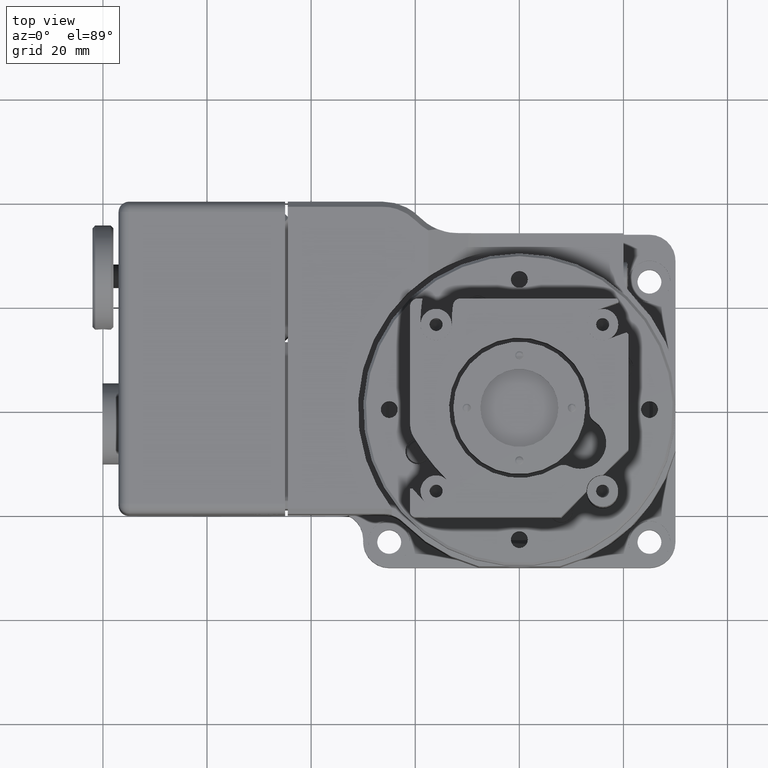
[diagram: clean part render]
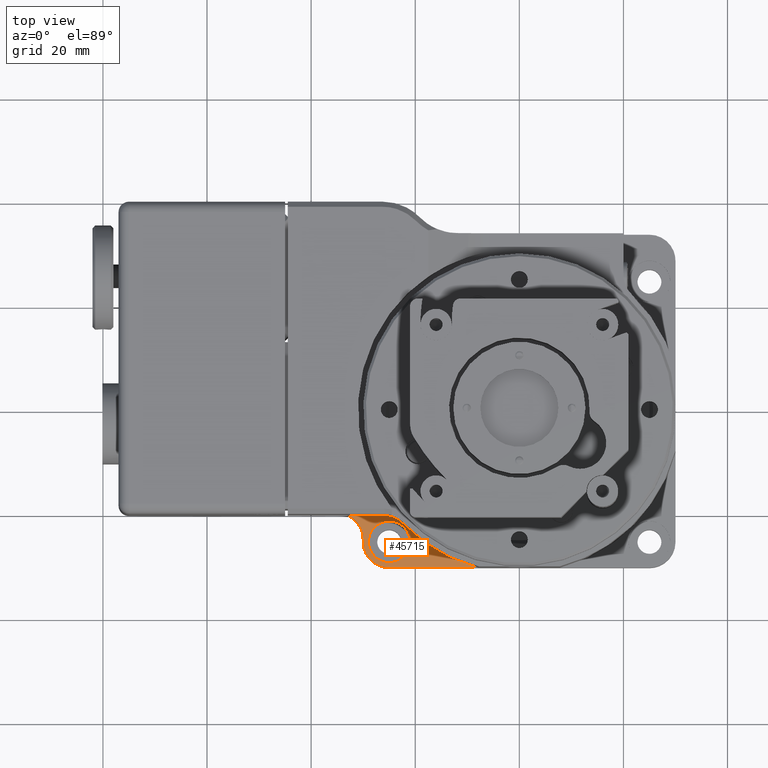
[diagram: same view with one face highlighted and labeled with its STEP entity id]
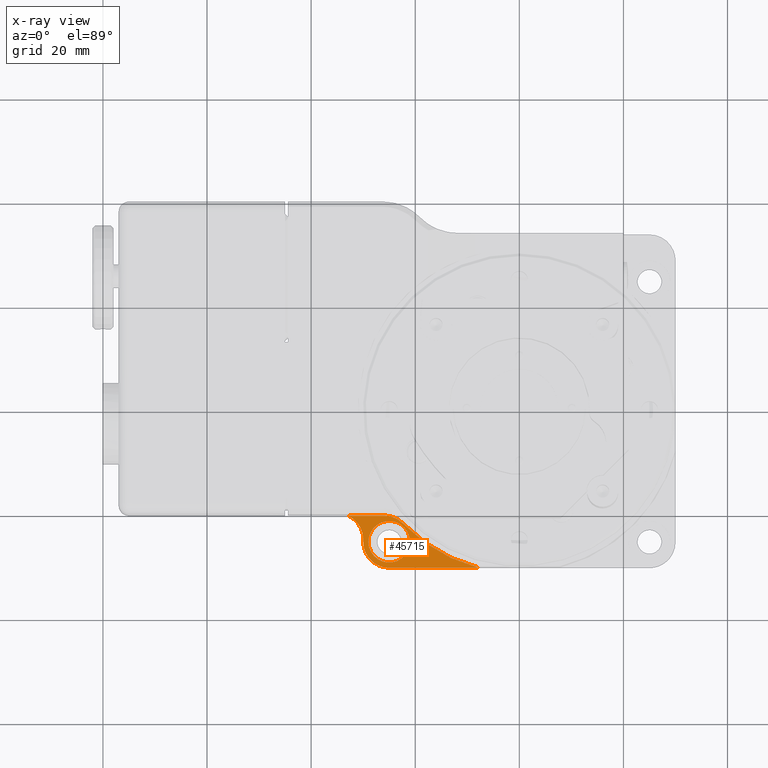
[diagram: x-ray of the same camera — body ghosted, the highlighted face saturated]
A machine part, top view. The second image highlights one B-rep face of the part: STEP entity #45715.
The next image is the same camera in x-ray: the body ghosted, the highlighted face saturated — about 0% of this face is hidden behind the body in this view.
In plain terms, the highlighted planar face has unit normal (0, 0, 1).
Its self-contained STEP definition (entity closure, byte-faithful):
#95 = CARTESIAN_POINT ( 'NONE',  ( -1.181102362204724310, -0.9842519685039370358, 0.2362204724409449064 ) ) ;
#316 = CARTESIAN_POINT ( 'NONE',  ( -1.005120720590176875, -0.8267745229967294884, 0.2362204724409449064 ) ) ;
#339 = CARTESIAN_POINT ( 'NONE',  ( -1.201344411730649986, -0.8756753625393594032, 0.2362204724409448509 ) ) ;
#679 = CARTESIAN_POINT ( 'NONE',  ( -0.8387591287383803218, -0.9239868610448674913, 0.2362204724409449064 ) ) ;
#779 = ORIENTED_EDGE ( 'NONE', *, *, #62675, .T. ) ;
#1044 = CARTESIAN_POINT ( 'NONE',  ( -1.141732283464567121, -0.9842519685039370358, 0.2362204724409449064 ) ) ;
#1087 = CARTESIAN_POINT ( 'NONE',  ( -1.181102362204724532, -1.010088146745020898, 0.2362204724409448509 ) ) ;
#2015 = EDGE_CURVE ( 'NONE', #19621, #7167, #15440, .T. ) ;
#3485 = EDGE_CURVE ( 'NONE', #70395, #47482, #8767, .T. ) ;
#3813 = CARTESIAN_POINT ( 'NONE',  ( -0.5676272143555766148, -1.081882468068282588, 0.2362204724409449341 ) ) ;
#4158 = EDGE_CURVE ( 'NONE', #41418, #60409, #49344, .T. ) ;
#4309 = DIRECTION ( 'NONE',  ( 0.000000000000000000, 0.000000000000000000, 1.000000000000000000 ) ) ;
#5360 = CARTESIAN_POINT ( 'NONE',  ( -1.044517075963006469, -1.129744808269493861, 0.2362204724409449064 ) ) ;
#5727 = CARTESIAN_POINT ( 'NONE',  ( -1.137736458399542849, -1.025231026773503862, 0.2362204724409449064 ) ) ;
#5844 = CARTESIAN_POINT ( 'NONE',  ( -1.141732283464567121, -0.9842519685039370358, 0.2362204724409449064 ) ) ;
#6810 = CARTESIAN_POINT ( 'NONE',  ( -0.9633832164176973079, -0.8267687840898848561, 0.2362204724409449064 ) ) ;
#6842 = ORIENTED_EDGE ( 'NONE', *, *, #3485, .T. ) ;
#7167 = VERTEX_POINT ( 'NONE', #24224 ) ;
#7263 = EDGE_CURVE ( 'NONE', #37732, #37732, #64220, .T. ) ;
#7933 = CARTESIAN_POINT ( 'NONE',  ( -0.8965366823102519644, -0.8285367831996039989, 0.2362204724409448509 ) ) ;
#8767 = B_SPLINE_CURVE_WITH_KNOTS ( 'NONE', 3,
 ( #55742, #16256, #43811, #10798, #22393, #339, #11874, #11153, #66925, #66207 ),
 .UNSPECIFIED., .F., .F.,
 ( 4, 2, 2, 2, 4 ),
 ( 0.000000000000000000, 0.2500000000000000000, 0.5000000000000000000, 0.7500000000000000000, 1.000000000000000000 ),
 .UNSPECIFIED. ) ;
#10387 = CARTESIAN_POINT ( 'NONE',  ( -1.019829436770755882, -0.7874015748031496509, 0.2362204724409449064 ) ) ;
#10775 = CARTESIAN_POINT ( 'NONE',  ( -1.121761333621246859, -0.9047055500311032006, 0.2362204724409449064 ) ) ;
#10798 = CARTESIAN_POINT ( 'NONE',  ( -1.232780298192905022, -0.8303388569377188055, 0.2362204724409449341 ) ) ;
#10943 = CARTESIAN_POINT ( 'NONE',  ( -0.9842519685039370358, -1.181102362204724310, 0.2362204724409449064 ) ) ;
#11127 = CARTESIAN_POINT ( 'NONE',  ( -1.063798386976755328, -1.121761333621262402, 0.2362204724409449064 ) ) ;
#11153 = CARTESIAN_POINT ( 'NONE',  ( -1.183656734863955728, -0.9279398007712792440, 0.2362204724409449341 ) ) ;
#11497 = CARTESIAN_POINT ( 'NONE',  ( -0.8307756540901329867, -1.025235764949241846, 0.2362204724409449064 ) ) ;
#11604 = EDGE_LOOP ( 'NONE', ( #17539 ) ) ;
#11851 = CARTESIAN_POINT ( 'NONE',  ( -0.9633832164177196233, -1.141729414011144694, 0.2362204724409449064 ) ) ;
#11874 = CARTESIAN_POINT ( 'NONE',  ( -1.193874225500880071, -0.8924144232880264482, 0.2362204724409449341 ) ) ;
#13349 = EDGE_CURVE ( 'NONE', #47482, #19621, #36727, .T. ) ;
#13350 = CARTESIAN_POINT ( 'NONE',  ( -0.9185790216771224648, -0.8133871758025378318, 0.2362204724409449341 ) ) ;
#13712 = CARTESIAN_POINT ( 'NONE',  ( -0.9933759514816618008, -0.7874015748031496509, 0.2362204724409449341 ) ) ;
#15266 = CARTESIAN_POINT ( 'NONE',  ( -0.3074901447207358252, -1.181102362204724310, 0.2362204724409449064 ) ) ;
#15440 = B_SPLINE_CURVE_WITH_KNOTS ( 'NONE', 3,
 ( #15653, #1087, #44915, #61181, #34018, #29277, #23122, #28199, #39815, #54417 ),
 .UNSPECIFIED., .F., .F.,
 ( 4, 2, 2, 2, 4 ),
 ( 0.000000000000000000, 0.2500000000000000000, 0.5000000000000000000, 0.7500000000000000000, 1.000000000000000000 ),
 .UNSPECIFIED. ) ;
#15653 = CARTESIAN_POINT ( 'NONE',  ( -1.181102362204724310, -0.9842519685039370358, 0.2362204724409449064 ) ) ;
#16233 = CARTESIAN_POINT ( 'NONE',  ( -0.8467426033866275459, -1.063798386976770871, 0.2362204724409449064 ) ) ;
#16256 = CARTESIAN_POINT ( 'NONE',  ( -1.275513438227352969, -0.7954578954223565646, 0.2362204724409448509 ) ) ;
#16369 = CARTESIAN_POINT ( 'NONE',  ( -1.181102362204724310, -0.9776902887139107268, 0.2362204724409449064 ) ) ;
#16438 = CARTESIAN_POINT ( 'NONE',  ( -1.019829436770755882, -0.7874015748031496509, 0.2362204724409449064 ) ) ;
#16589 = CARTESIAN_POINT ( 'NONE',  ( -1.129744808269494083, -1.044517075963006469, 0.2362204724409449064 ) ) ;
#16937 = CARTESIAN_POINT ( 'NONE',  ( -0.9842519685039370358, -0.8267716535433071723, 0.2362204724409449064 ) ) ;
#17539 = ORIENTED_EDGE ( 'NONE', *, *, #7263, .T. ) ;
#17662 = CARTESIAN_POINT ( 'NONE',  ( -0.8581381047669203177, -0.8876509769968741193, 0.2362204724409449064 ) ) ;
#19621 = VERTEX_POINT ( 'NONE', #58971 ) ;
#21115 = ORIENTED_EDGE ( 'NONE', *, *, #4158, .T. ) ;
#21632 = CARTESIAN_POINT ( 'NONE',  ( -1.201374917984732393, -0.7874015748031496509, 0.2362204724409449064 ) ) ;
#21659 = CARTESIAN_POINT ( 'NONE',  ( -0.8728965698918822458, -1.095607367115991826, 0.2362204724409449064 ) ) ;
#22393 = CARTESIAN_POINT ( 'NONE',  ( -1.220971997476859361, -0.8443685136039105199, 0.2362204724409449341 ) ) ;
#22728 = CARTESIAN_POINT ( 'NONE',  ( -0.8387591287383803218, -1.044517075963006469, 0.2362204724409449064 ) ) ;
#23081 = CARTESIAN_POINT ( 'NONE',  ( -1.137728282917741307, -0.9432681720586324481, 0.2362204724409449064 ) ) ;
#23122 = CARTESIAN_POINT ( 'NONE',  ( -1.083438581819484048, -1.156233784393602360, 0.2362204724409449341 ) ) ;
#24215 = CARTESIAN_POINT ( 'NONE',  ( -0.9671948203741187466, -0.7927361504052294894, 0.2362204724409449341 ) ) ;
#24224 = CARTESIAN_POINT ( 'NONE',  ( -0.9842519685039370358, -1.181102362204724310, 0.2362204724409449064 ) ) ;
#25432 = ORIENTED_EDGE ( 'NONE', *, *, #13349, .T. ) ;
#25859 = CARTESIAN_POINT ( 'NONE',  ( -0.6640732296302217508, -1.025515437574841426, 0.2362204724409448509 ) ) ;
#26157 = CARTESIAN_POINT ( 'NONE',  ( -0.5330774193151365248, -1.181102362204724532, 0.2362204724409449064 ) ) ;
#26374 = CARTESIAN_POINT ( 'NONE',  ( -1.292147658591720427, -0.7874015748031496509, 0.2362204724409449064 ) ) ;
#26911 = B_SPLINE_CURVE_WITH_KNOTS ( 'NONE', 3,
 ( #62988, #7933, #13350, #24215, #13712, #51790 ),
 .UNSPECIFIED., .F., .F.,
 ( 4, 2, 4 ),
 ( 0.000000000000000000, 0.5000000000000000000, 1.000000000000000000 ),
 .UNSPECIFIED. ) ;
#27428 = CARTESIAN_POINT ( 'NONE',  ( -1.080848901991032784, -1.110361774220981035, 0.2362204724409449064 ) ) ;
#28158 = CARTESIAN_POINT ( 'NONE',  ( -1.121753158139445317, -1.063803125152508855, 0.2362204724409449064 ) ) ;
#28199 = CARTESIAN_POINT ( 'NONE',  ( -1.035728123836063608, -1.176002252028163886, 0.2362204724409449341 ) ) ;
#28516 = CARTESIAN_POINT ( 'NONE',  ( -1.129744808269494083, -0.9239868610448678243, 0.2362204724409449064 ) ) ;
#28879 = CARTESIAN_POINT ( 'NONE',  ( -0.8267716535433070613, -0.9842519685039370358, 0.2362204724409449064 ) ) ;
#29277 = CARTESIAN_POINT ( 'NONE',  ( -1.105189391483670125, -1.141707058997788016, 0.2362204724409448509 ) ) ;
#30222 = EDGE_LOOP ( 'NONE', ( #62510, #21115, #779, #69680, #6842, #25432, #71297 ) ) ;
#30604 = CARTESIAN_POINT ( 'NONE',  ( -0.3074901447207358252, -1.181102362204724310, 0.2362204724409449064 ) ) ;
#32529 = DIRECTION ( 'NONE',  ( 1.000000000000000000, 0.000000000000000000, 0.000000000000000000 ) ) ;
#33249 = FACE_BOUND ( 'NONE', #11604, .T. ) ;
#33253 = CARTESIAN_POINT ( 'NONE',  ( -0.8728965698918822458, -0.8728965698918823568, 0.2362204724409449064 ) ) ;
#33610 = CARTESIAN_POINT ( 'NONE',  ( -1.025237961133799169, -0.8307703520315700141, 0.2362204724409449064 ) ) ;
#34018 = CARTESIAN_POINT ( 'NONE',  ( -1.141703042054341477, -1.105185374540223364, 0.2362204724409449341 ) ) ;
#36052 = CARTESIAN_POINT ( 'NONE',  ( -0.7101721408900997234, -0.9941462012416720784, 0.2362204724409449341 ) ) ;
#36727 = B_SPLINE_CURVE_WITH_KNOTS ( 'NONE', 3,
 ( #43931, #59877, #16369, #95 ),
 .UNSPECIFIED., .F., .F.,
 ( 4, 4 ),
 ( 0.000000000000000000, 1.000000000000000000 ),
 .UNSPECIFIED. ) ;
#37424 = CARTESIAN_POINT ( 'NONE',  ( -0.3074901447207358252, -1.181102362204724310, 0.2362204724409449064 ) ) ;
#37732 = VERTEX_POINT ( 'NONE', #5844 ) ;
#38336 = CARTESIAN_POINT ( 'NONE',  ( -1.063796190792213547, -0.8467479054451905185, 0.2362204724409449064 ) ) ;
#38696 = CARTESIAN_POINT ( 'NONE',  ( -0.8307703520315697920, -0.9432659758740089551, 0.2362204724409449064 ) ) ;
#39039 = CARTESIAN_POINT ( 'NONE',  ( -0.8876550350168440628, -0.8581421627868904833, 0.2362204724409449064 ) ) ;
#39399 = CARTESIAN_POINT ( 'NONE',  ( -1.141732283464567121, -0.9842519685039370358, 0.2362204724409449064 ) ) ;
#39769 = CARTESIAN_POINT ( 'NONE',  ( -0.9432659758740749023, -1.137733584976304169, 0.2362204724409449064 ) ) ;
#39815 = CARTESIAN_POINT ( 'NONE',  ( -1.010117298213887738, -1.181102362204724754, 0.2362204724409449341 ) ) ;
#41418 = VERTEX_POINT ( 'NONE', #15266 ) ;
#42623 = B_SPLINE_CURVE_WITH_KNOTS ( 'NONE', 3,
 ( #10387, #48840, #21632, #60764 ),
 .UNSPECIFIED., .F., .F.,
 ( 4, 4 ),
 ( 0.000000000000000000, 1.000000000000000000 ),
 .UNSPECIFIED. ) ;
#43317 = EDGE_CURVE ( 'NONE', #7167, #41418, #65357, .T. ) ;
#43428 = CARTESIAN_POINT ( 'NONE',  ( -1.029729324328870099, -0.9842519685039370358, 0.2362204724409449064 ) ) ;
#43786 = CARTESIAN_POINT ( 'NONE',  ( -0.8876509769969206376, -1.110365832241000605, 0.2362204724409449064 ) ) ;
#43811 = CARTESIAN_POINT ( 'NONE',  ( -1.260293899574404408, -0.8056738482914050925, 0.2362204724409449341 ) ) ;
#43931 = CARTESIAN_POINT ( 'NONE',  ( -1.181102362204724310, -0.9645669291338583307, 0.2362204724409449064 ) ) ;
#44145 = CARTESIAN_POINT ( 'NONE',  ( -1.095607367115992048, -0.8728965698918823568, 0.2362204724409449064 ) ) ;
#44869 = CARTESIAN_POINT ( 'NONE',  ( -1.005120720590154670, -1.141735152917989327, 0.2362204724409449064 ) ) ;
#44915 = CARTESIAN_POINT ( 'NONE',  ( -1.175997003638609817, -1.035725949881992403, 0.2362204724409449341 ) ) ;
#45229 = CARTESIAN_POINT ( 'NONE',  ( -1.044517075963006469, -0.8387591287383803218, 0.2362204724409449064 ) ) ;
#45715 = ADVANCED_FACE ( 'NONE', ( #33249, #53937 ), #59722, .T. ) ;
#47482 = VERTEX_POINT ( 'NONE', #57907 ) ;
#47667 = CARTESIAN_POINT ( 'NONE',  ( -0.5176669719051145702, -1.106659872415545642, 0.2362204724409449341 ) ) ;
#48024 = VERTEX_POINT ( 'NONE', #16438 ) ;
#48840 = CARTESIAN_POINT ( 'NONE',  ( -1.110602177377744137, -0.7874015748031496509, 0.2362204724409449064 ) ) ;
#49344 = B_SPLINE_CURVE_WITH_KNOTS ( 'NONE', 3,
 ( #30604, #53437, #63914, #47667, #3813, #25859, #36052, #69339, #69701, #70061 ),
 .UNSPECIFIED., .F., .F.,
 ( 4, 2, 2, 2, 4 ),
 ( 0.000000000000000000, 0.2499999999999998335, 0.4999999999999996669, 0.7499999999999997780, 1.000000000000000000 ),
 .UNSPECIFIED. ) ;
#49585 = CARTESIAN_POINT ( 'NONE',  ( -1.141732283464567121, -0.9633762862492792900, 0.2362204724409449064 ) ) ;
#49935 = CARTESIAN_POINT ( 'NONE',  ( -1.141732283464567121, -1.005142657620480717, 0.2362204724409449064 ) ) ;
#50300 = CARTESIAN_POINT ( 'NONE',  ( -0.9432681720586324481, -0.8307756540901329867, 0.2362204724409449064 ) ) ;
#50655 = CARTESIAN_POINT ( 'NONE',  ( -0.9239868610448678243, -0.8387591287383803218, 0.2362204724409449064 ) ) ;
#51790 = CARTESIAN_POINT ( 'NONE',  ( -1.019829436770755882, -0.7874015748031496509, 0.2362204724409449064 ) ) ;
#53437 = CARTESIAN_POINT ( 'NONE',  ( -0.3615502175172597976, -1.167028273336773170, 0.2362204724409449341 ) ) ;
#53937 = FACE_OUTER_BOUND ( 'NONE', #30222, .T. ) ;
#54417 = CARTESIAN_POINT ( 'NONE',  ( -0.9842519685039370358, -1.181102362204724310, 0.2362204724409449064 ) ) ;
#54999 = CARTESIAN_POINT ( 'NONE',  ( -0.8467479054451907405, -0.9047077462157261385, 0.2362204724409449064 ) ) ;
#55166 = CARTESIAN_POINT ( 'NONE',  ( -0.7586646939095368358, -1.181102362204724532, 0.2362204724409449064 ) ) ;
#55366 = CARTESIAN_POINT ( 'NONE',  ( -0.8267745229967291554, -0.9633832164176973079, 0.2362204724409449064 ) ) ;
#55719 = CARTESIAN_POINT ( 'NONE',  ( -0.9239868610448678243, -1.129744808269493861, 0.2362204724409449064 ) ) ;
#55742 = CARTESIAN_POINT ( 'NONE',  ( -1.292147658591720427, -0.7874015748031496509, 0.2362204724409449064 ) ) ;
#56444 = CARTESIAN_POINT ( 'NONE',  ( -0.8581421627868438540, -1.080848901990983046, 0.2362204724409449064 ) ) ;
#57907 = CARTESIAN_POINT ( 'NONE',  ( -1.181102362204724310, -0.9645669291338583307, 0.2362204724409449064 ) ) ;
#58971 = CARTESIAN_POINT ( 'NONE',  ( -1.181102362204724310, -0.9842519685039370358, 0.2362204724409449064 ) ) ;
#59722 = PLANE ( 'NONE',  #65508 ) ;
#59877 = CARTESIAN_POINT ( 'NONE',  ( -1.181102362204724310, -0.9711286089238845287, 0.2362204724409449064 ) ) ;
#60409 = VERTEX_POINT ( 'NONE', #70950 ) ;
#60433 = CARTESIAN_POINT ( 'NONE',  ( -1.025235764949257389, -1.137728282917725320, 0.2362204724409449064 ) ) ;
#60764 = CARTESIAN_POINT ( 'NONE',  ( -1.292147658591720427, -0.7874015748031496509, 0.2362204724409449064 ) ) ;
#60788 = CARTESIAN_POINT ( 'NONE',  ( -1.080852960010953545, -0.8581381047668735773, 0.2362204724409449064 ) ) ;
#61142 = CARTESIAN_POINT ( 'NONE',  ( -0.8267687840898848561, -1.005120720590176875, 0.2362204724409449064 ) ) ;
#61181 = CARTESIAN_POINT ( 'NONE',  ( -1.156239032783156651, -1.083440755773554587, 0.2362204724409449341 ) ) ;
#61859 = CARTESIAN_POINT ( 'NONE',  ( -0.9842519685039370358, -1.141732283464567121, 0.2362204724409449064 ) ) ;
#61901 = EDGE_CURVE ( 'NONE', #48024, #70395, #42623, .T. ) ;
#62510 = ORIENTED_EDGE ( 'NONE', *, *, #43317, .T. ) ;
#62675 = EDGE_CURVE ( 'NONE', #60409, #48024, #26911, .T. ) ;
#62988 = CARTESIAN_POINT ( 'NONE',  ( -0.8781864594414842129, -0.8475503062117245578, 0.2362204724409449064 ) ) ;
#63914 = CARTESIAN_POINT ( 'NONE',  ( -0.4144215762089171196, -1.149315050959826223, 0.2362204724409449341 ) ) ;
#64220 = B_SPLINE_CURVE_WITH_KNOTS ( 'NONE', 3,
 ( #1044, #49585, #23081, #28516, #10775, #66536, #44145, #60788, #38336, #45229, #33610, #316, #16937, #6810, #50300, #50655, #67256, #39039, #33253, #17662, #54999, #679, #38696, #55366, #28879, #61142, #11497, #22728, #16233, #56444, #21659, #43786, #65836, #55719, #39769, #11851, #61859, #44869, #60433, #5360, #11127, #27428, #71634, #66180, #28158, #16589, #5727, #49935, #39399 ),
 .UNSPECIFIED., .T., .F.,
 ( 4, 3, 3, 3, 3, 3, 3, 3, 3, 3, 3, 3, 3, 3, 3, 3, 4 ),
 ( 0.000000000000000000, 0.06250000000000000000, 0.1250000000000000000, 0.1875000000000000000, 0.2500000000000000000, 0.3125000000000000000, 0.3750000000000000000, 0.4375000000000000000, 0.5000000000000000000, 0.5625000000000000000, 0.6250000000000000000, 0.6875000000000000000, 0.7500000000000000000, 0.8125000000000000000, 0.8750000000000000000, 0.9375000000000000000, 1.000000000000000000 ),
 .UNSPECIFIED. ) ;
#65357 = B_SPLINE_CURVE_WITH_KNOTS ( 'NONE', 3,
 ( #10943, #55166, #26157, #37424 ),
 .UNSPECIFIED., .F., .F.,
 ( 4, 4 ),
 ( 0.000000000000000000, 1.000000000000000000 ),
 .UNSPECIFIED. ) ;
#65508 = AXIS2_PLACEMENT_3D ( 'NONE', #43428, #4309, #32529 ) ;
#65836 = CARTESIAN_POINT ( 'NONE',  ( -0.9047077462156607464, -1.121756031562683775, 0.2362204724409449064 ) ) ;
#66180 = CARTESIAN_POINT ( 'NONE',  ( -1.110365832240950645, -1.080852960011003061, 0.2362204724409449064 ) ) ;
#66207 = CARTESIAN_POINT ( 'NONE',  ( -1.181102362204724310, -0.9645669291338583307, 0.2362204724409449064 ) ) ;
#66536 = CARTESIAN_POINT ( 'NONE',  ( -1.110361774221030329, -0.8876550350168911363, 0.2362204724409449064 ) ) ;
#66925 = CARTESIAN_POINT ( 'NONE',  ( -1.181102362204724754, -0.9460697398060147201, 0.2362204724409449341 ) ) ;
#67256 = CARTESIAN_POINT ( 'NONE',  ( -0.9047055500311032006, -0.8467426033866275459, 0.2362204724409449064 ) ) ;
#69339 = CARTESIAN_POINT ( 'NONE',  ( -0.7980197799112718204, -0.9251164296802411036, 0.2362204724409448509 ) ) ;
#69680 = ORIENTED_EDGE ( 'NONE', *, *, #61901, .T. ) ;
#69701 = CARTESIAN_POINT ( 'NONE',  ( -0.8393832795915381340, -0.8877560932638304259, 0.2362204724409448509 ) ) ;
#70061 = CARTESIAN_POINT ( 'NONE',  ( -0.8781864594414842129, -0.8475503062117245578, 0.2362204724409449064 ) ) ;
#70395 = VERTEX_POINT ( 'NONE', #26374 ) ;
#70950 = CARTESIAN_POINT ( 'NONE',  ( -0.8781864594414842129, -0.8475503062117245578, 0.2362204724409449064 ) ) ;
#71297 = ORIENTED_EDGE ( 'NONE', *, *, #2015, .T. ) ;
#71634 = CARTESIAN_POINT ( 'NONE',  ( -1.095607367115991604, -1.095607367115992048, 0.2362204724409449064 ) ) ;